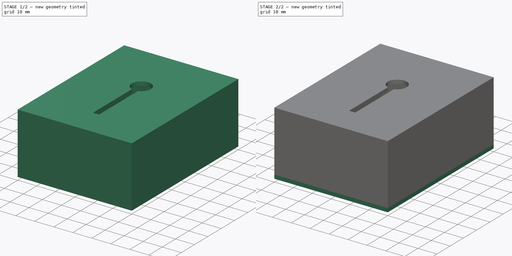
[diagram: build sequence overview — one tinted view per stage of 2, left to right]
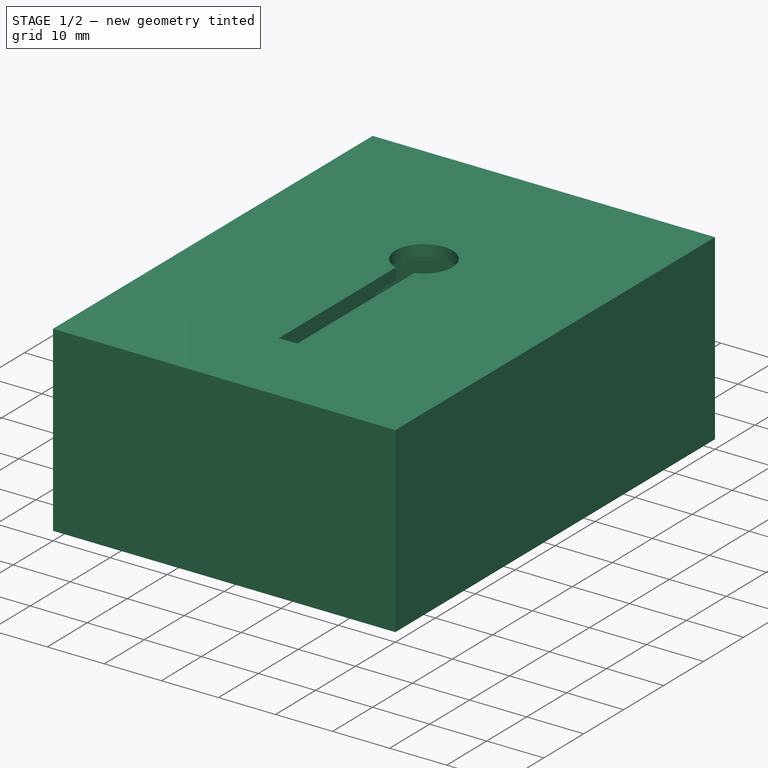
[diagram: stage 1 of 2 — iso view after this stage's code; geometry added in this stage tinted green]
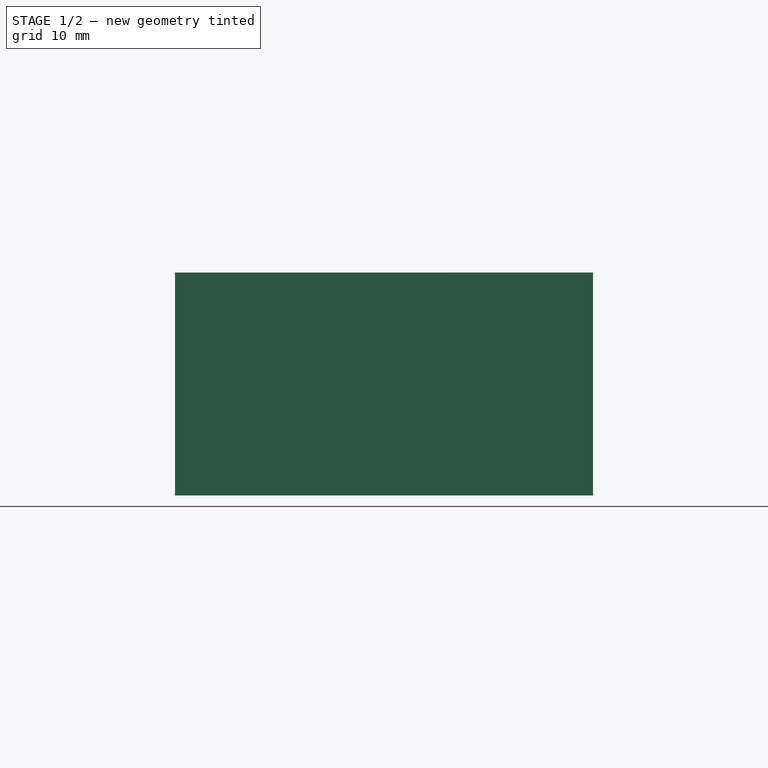
[diagram: stage 1 of 2 — front view after this stage's code; geometry added in this stage tinted green]
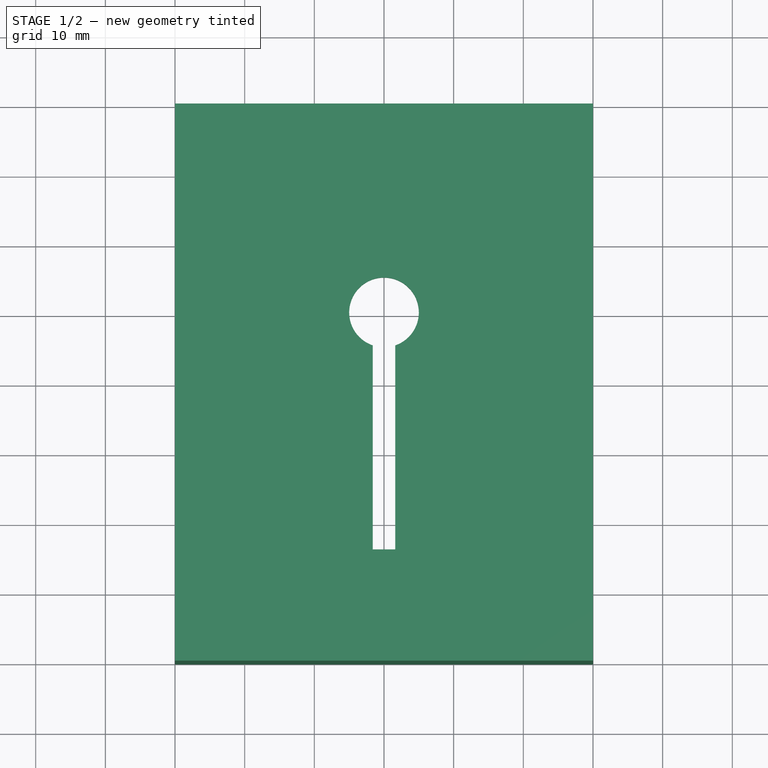
[diagram: stage 1 of 2 — top view after this stage's code; geometry added in this stage tinted green]
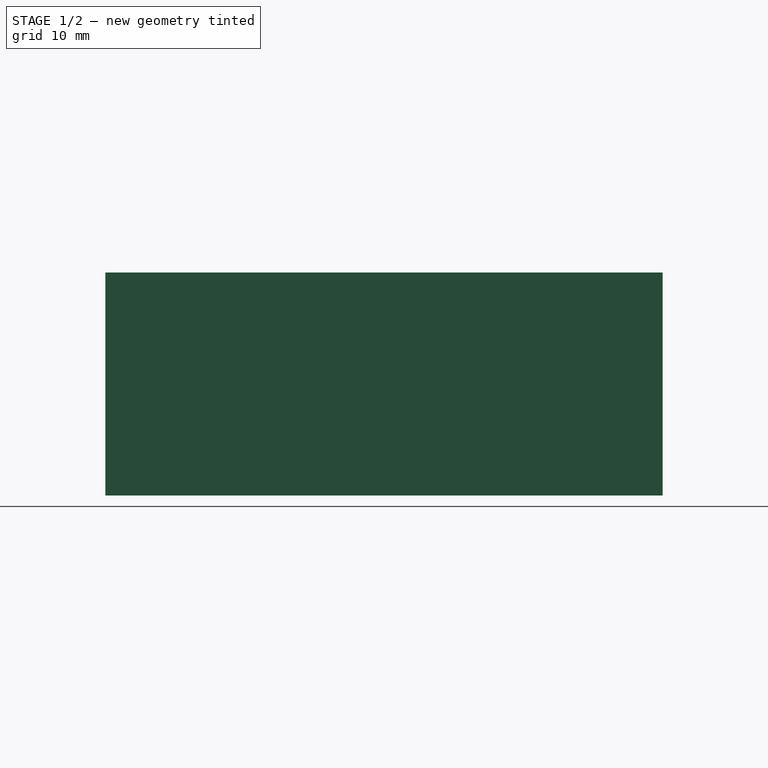
[diagram: stage 1 of 2 — right view after this stage's code; geometry added in this stage tinted green]
FCSTD DOCUMENT  (FreeCAD 0.15R4671 (Git))
Label: example 4
License: All rights reserved
LicenseURL: http://en.wikipedia.org/wiki/All_rights_reserved
objects: Sketcher::SketchObject×3, PartDesign::Pad×3
note: 9 computed .brp shape members not serialized (recipe doc carries the construction recipe); baked Part::Feature solids carry a one-line shape summary decoded from their .brp

FEATURE [Sketcher::SketchObject] Sketch001  label="sides sketch"
  Placement = pos=(0,0,2) rot=(0,0,1;0rad)
  sketch-geometry (8):
    g0: LineSegment StartX=-30 StartY=40 StartZ=0 EndX=30 EndY=40 EndZ=0
    g1: LineSegment StartX=30 StartY=40 StartZ=0 EndX=30 EndY=-40 EndZ=0
    g2: LineSegment StartX=30 StartY=-40 StartZ=0 EndX=-30 EndY=-40 EndZ=0
    g3: LineSegment StartX=-30 StartY=-40 StartZ=0 EndX=-30 EndY=40 EndZ=0
    g4: LineSegment StartX=-28 StartY=38 StartZ=0 EndX=28 EndY=38 EndZ=0
    g5: LineSegment StartX=28 StartY=38 StartZ=0 EndX=28 EndY=-38 EndZ=0
    g6: LineSegment StartX=28 StartY=-38 StartZ=0 EndX=-28 EndY=-38 EndZ=0
    g7: LineSegment StartX=-28 StartY=-38 StartZ=0 EndX=-28 EndY=38 EndZ=0
  constraints (24):
    c: Coincident(g0,g1)
    c: Coincident(g1,g2)
    c: Coincident(g2,g3)
    c: Coincident(g3,g0)
    c: Horizontal(g0)
    c: Horizontal(g2)
    c: Vertical(g1)
    c: Vertical(g3)
    c: Symmetric(g2,g1,g-2)
    c: Symmetric(g0,g2,g-1)
    c: DistanceY(g0,g2) = -80
    c: DistanceX(g2,g1) = 60
    c: Coincident(g4,g5)
    c: Coincident(g5,g6)
    c: Coincident(g6,g7)
    c: Coincident(g7,g4)
    c: Horizontal(g4)
    c: Horizontal(g6)
    c: Vertical(g5)
    c: Vertical(g7)
    c: DistanceX(g6,g2) = -2
    c: DistanceY(g6,g2) = -2
    c: DistanceY(g4,g0) = 2
    c: DistanceX(g4,g0) = 2
FEATURE [PartDesign::Pad] Pad001  label="sides"
  Length = 30
  Length2 = 100
  Placement = pos=(0,0,2) rot=(0,0,1;0rad)
  Sketch = -> Sketch001
  Type = 0
FEATURE [Sketcher::SketchObject] Sketch002  label="front plate sketch"
  Placement = pos=(0,0,32) rot=(0,0,1;0rad)
  sketch-geometry (8):
    g0: LineSegment StartX=-30 StartY=40 StartZ=0 EndX=30 EndY=40 EndZ=0
    g1: LineSegment StartX=30 StartY=40 StartZ=0 EndX=30 EndY=-40 EndZ=0
    g2: LineSegment StartX=30 StartY=-40 StartZ=0 EndX=-30 EndY=-40 EndZ=0
    g3: LineSegment StartX=-30 StartY=-40 StartZ=0 EndX=-30 EndY=40 EndZ=0
    g4: ArcOfCircle CenterX=0 CenterY=10 CenterZ=0 NormalX=0 NormalY=0 NormalZ=1 Radius=5 StartAngle=5.04311 EndAngle=10.6649
    g5: LineSegment StartX=1.62362 StartY=5.27096 StartZ=0 EndX=1.62362 EndY=-24.0165 EndZ=0
    g6: LineSegment StartX=1.62362 StartY=-24.0165 StartZ=0 EndX=-1.62362 EndY=-24.0165 EndZ=0
    g7: LineSegment StartX=-1.62362 StartY=-24.0165 StartZ=0 EndX=-1.62362 EndY=5.27096 EndZ=0
  constraints (23):
    c: Coincident(g0,g1)
    c: Coincident(g1,g2)
    c: Coincident(g2,g3)
    c: Coincident(g3,g0)
    c: Horizontal(g0)
    c: Horizontal(g2)
    c: Vertical(g1)
    c: Vertical(g3)
    c: Symmetric(g2,g1,g-2)
    c: Symmetric(g0,g2,g-1)
    c: DistanceY(g0,g2) = -80
    c: DistanceX(g2,g1) = 60
    c: DistanceX(g-1,g4) = 0
    c: DistanceY(g-1,g4) = 10
    c: Radius(g4) = 5
    c: Coincident(g5,g6)
    c: Coincident(g6,g7)
    c: Horizontal(g6)
    c: Vertical(g5)
    c: Vertical(g7)
    c: Symmetric(g5,g6,g-2)
    c: PointOnObject(g4,g7)
    c: Coincident(g5,g4)
FEATURE [PartDesign::Pad] Pad002  label="front plate"
  Length = 2
  Length2 = 100
  Placement = pos=(0,0,32) rot=(0,0,1;0rad)
  Sketch = -> Sketch002
  Type = 0
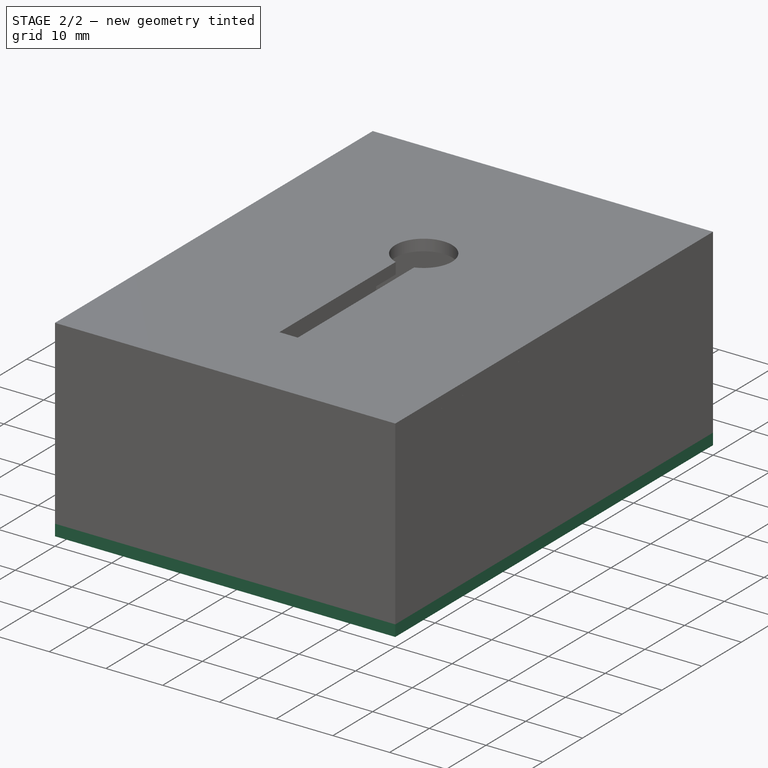
[diagram: stage 2 of 2 — iso view after this stage's code; geometry added in this stage tinted green]
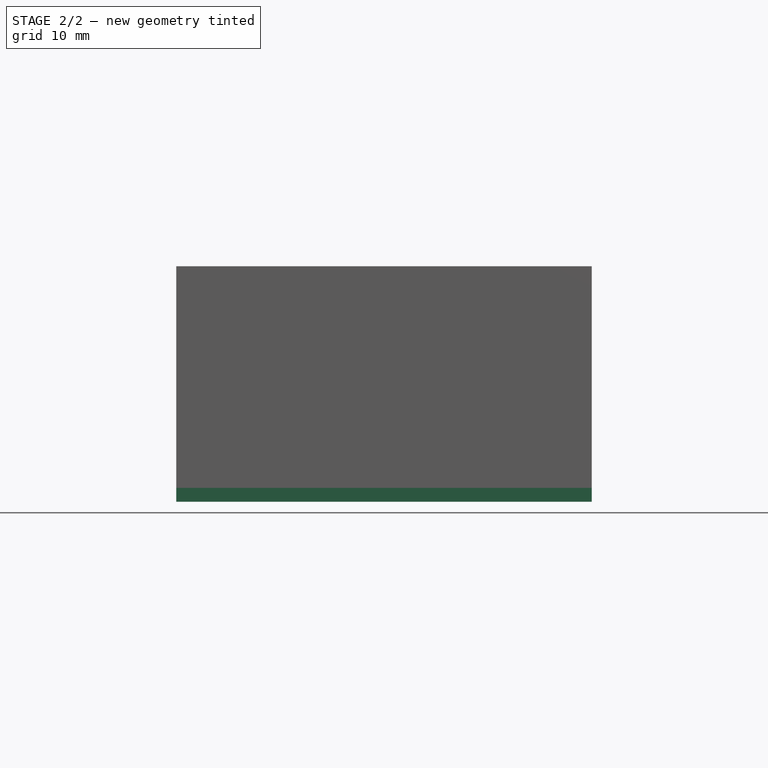
[diagram: stage 2 of 2 — front view after this stage's code; geometry added in this stage tinted green]
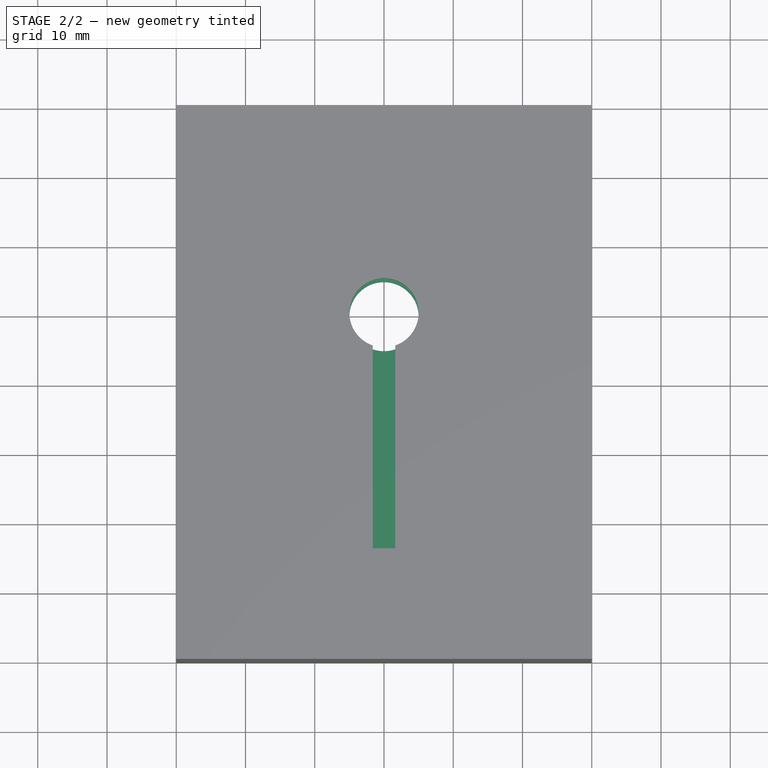
[diagram: stage 2 of 2 — top view after this stage's code; geometry added in this stage tinted green]
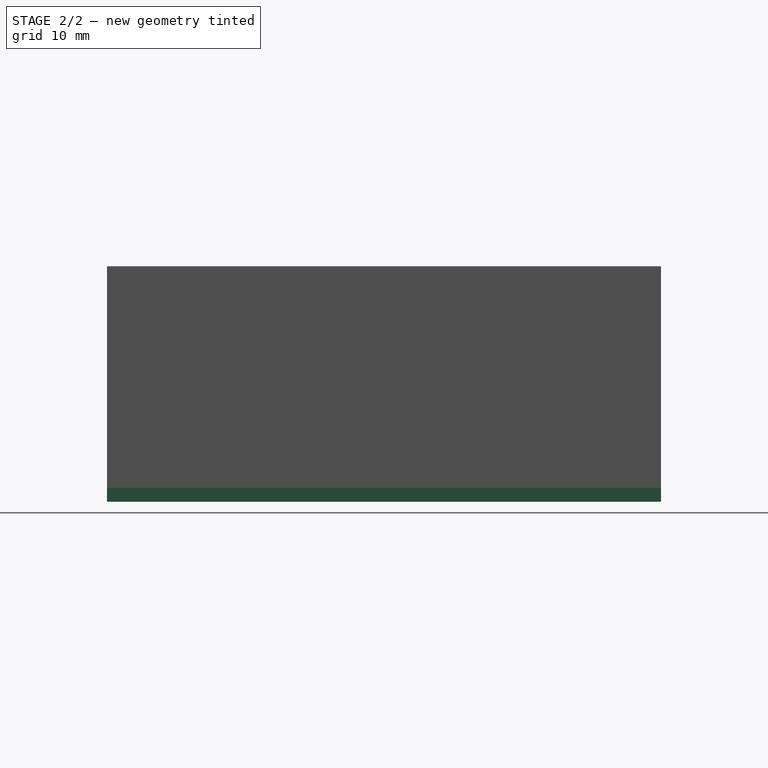
[diagram: stage 2 of 2 — right view after this stage's code; geometry added in this stage tinted green]
FEATURE [Sketcher::SketchObject] Sketch  label="back plate sketch"
  sketch-geometry (5):
    g0: LineSegment StartX=-30 StartY=40 StartZ=0 EndX=30 EndY=40 EndZ=0
    g1: LineSegment StartX=30 StartY=40 StartZ=0 EndX=30 EndY=-40 EndZ=0
    g2: LineSegment StartX=30 StartY=-40 StartZ=0 EndX=-30 EndY=-40 EndZ=0
    g3: LineSegment StartX=-30 StartY=-40 StartZ=0 EndX=-30 EndY=40 EndZ=0
    g4: Circle CenterX=0 CenterY=10 CenterZ=0 NormalX=0 NormalY=0 NormalZ=1 Radius=5
  constraints (15):
    c: Coincident(g0,g1)
    c: Coincident(g1,g2)
    c: Coincident(g2,g3)
    c: Coincident(g3,g0)
    c: Horizontal(g0)
    c: Horizontal(g2)
    c: Vertical(g1)
    c: Vertical(g3)
    c: Symmetric(g2,g1,g-2)
    c: Symmetric(g0,g2,g-1)
    c: DistanceY(g0,g2) = -80
    c: DistanceX(g2,g1) = 60
    c: DistanceX(g-1,g4) = 0
    c: DistanceY(g-1,g4) = 10
    c: Radius(g4) = 5
FEATURE [PartDesign::Pad] Pad  label="back plate"
  Length = 2
  Length2 = 100
  Sketch = -> Sketch
  Type = 0
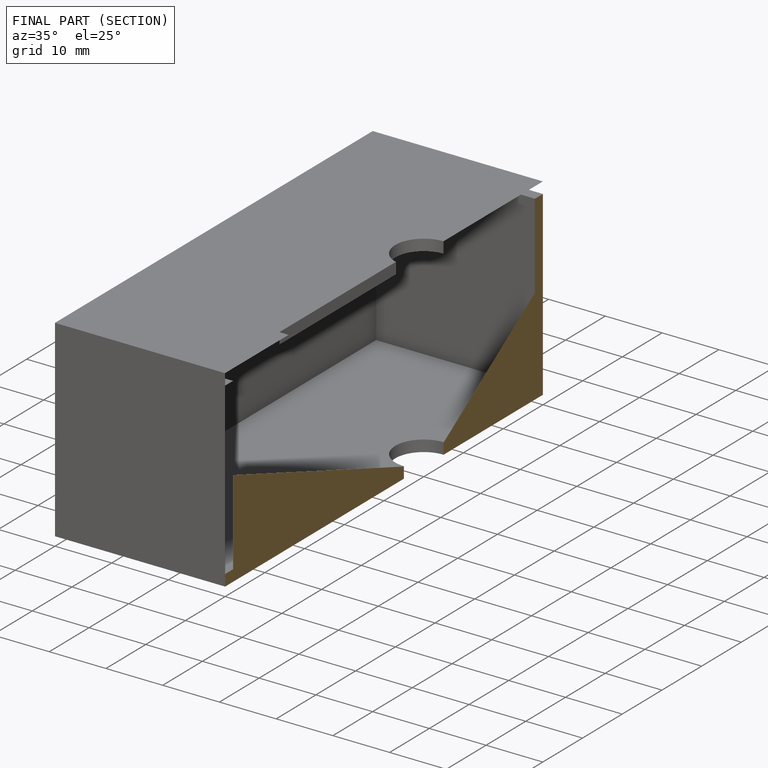
[diagram: finished part — half-section view (interior)]
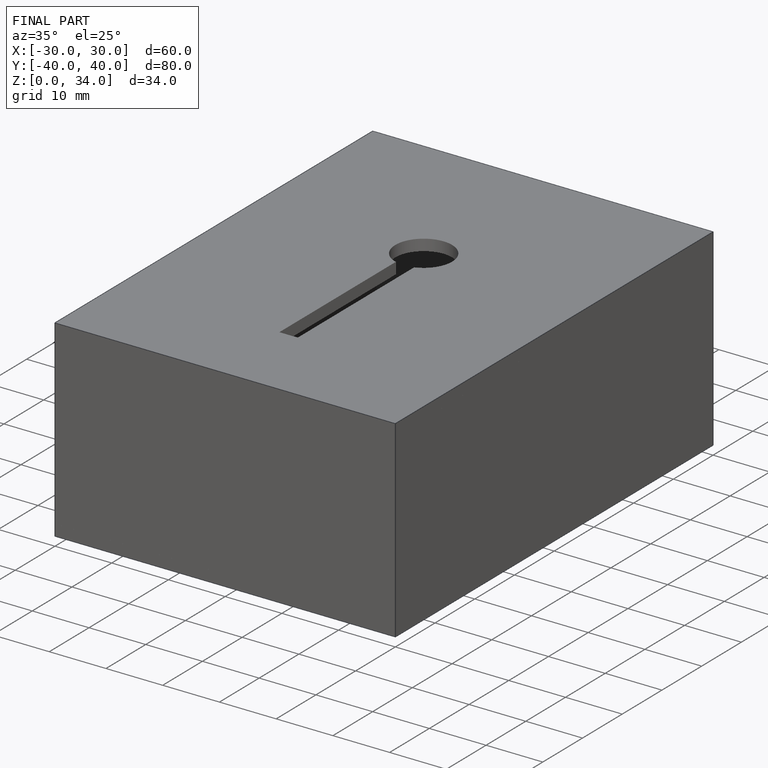
[diagram: finished part — iso view with bounding-box wireframe]
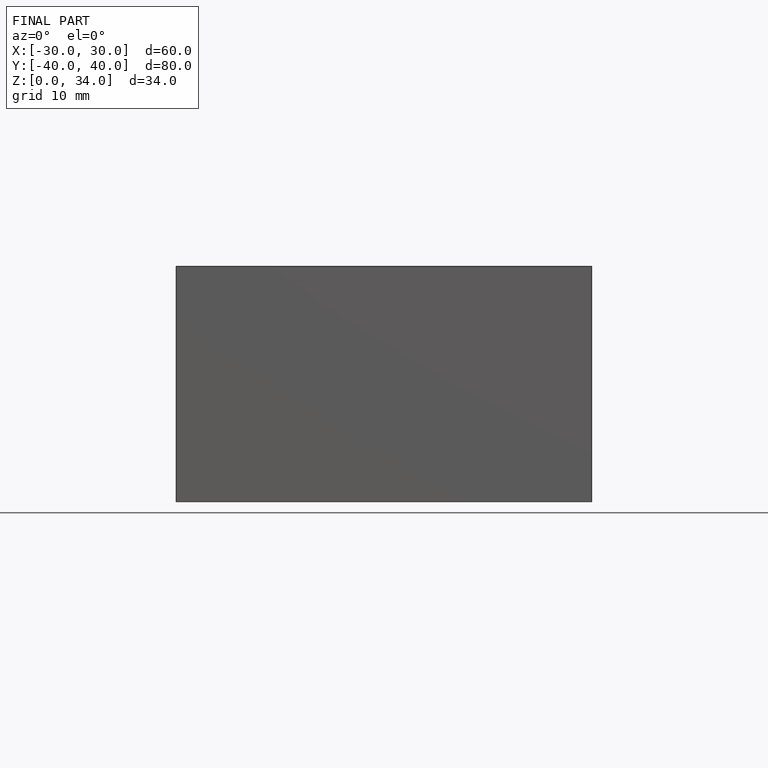
[diagram: finished part — front view with bounding-box wireframe]
